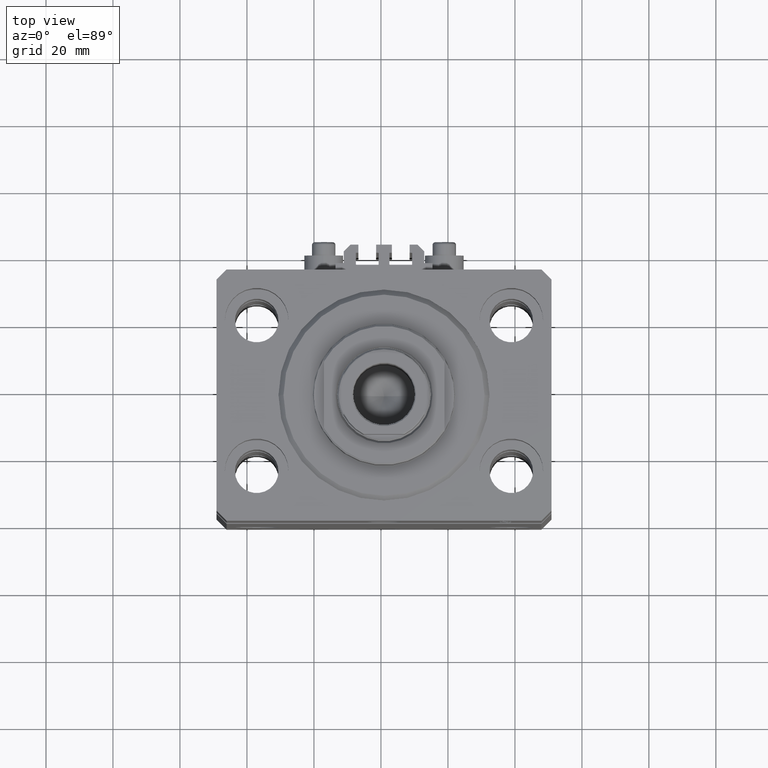
[diagram: clean part render]
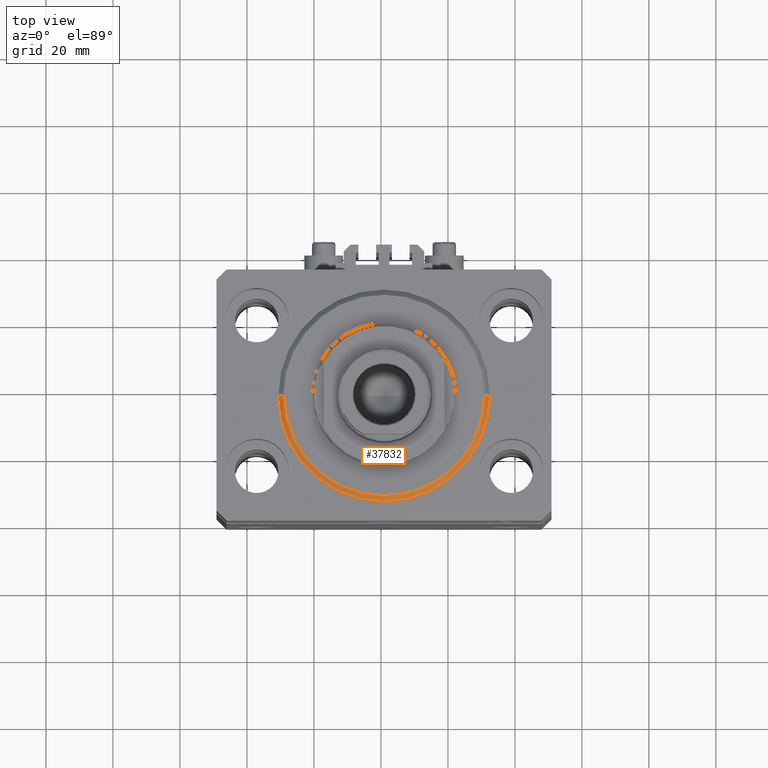
[diagram: same view with one face highlighted and labeled with its STEP entity id]
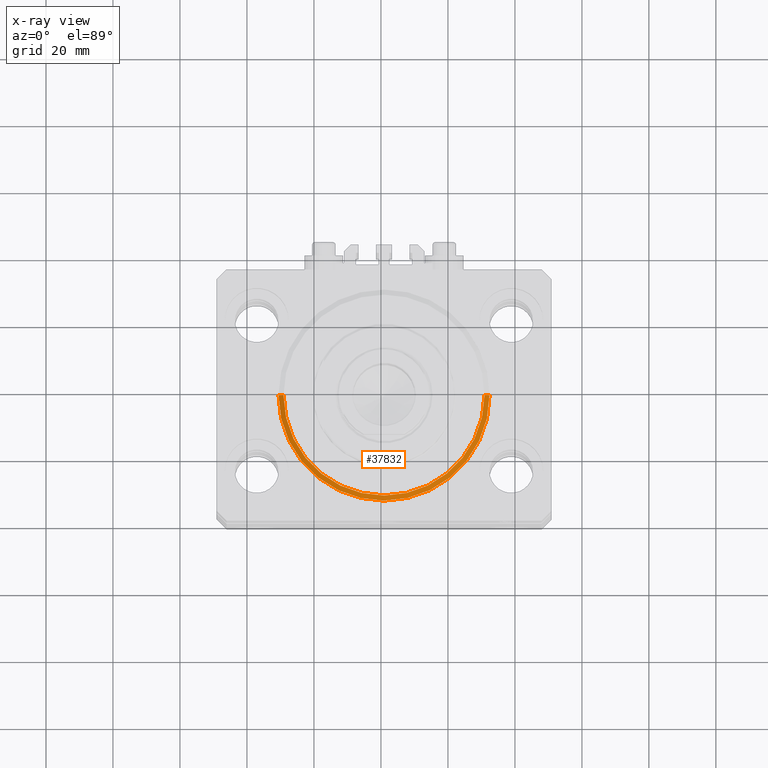
[diagram: x-ray of the same camera — body ghosted, the highlighted face saturated]
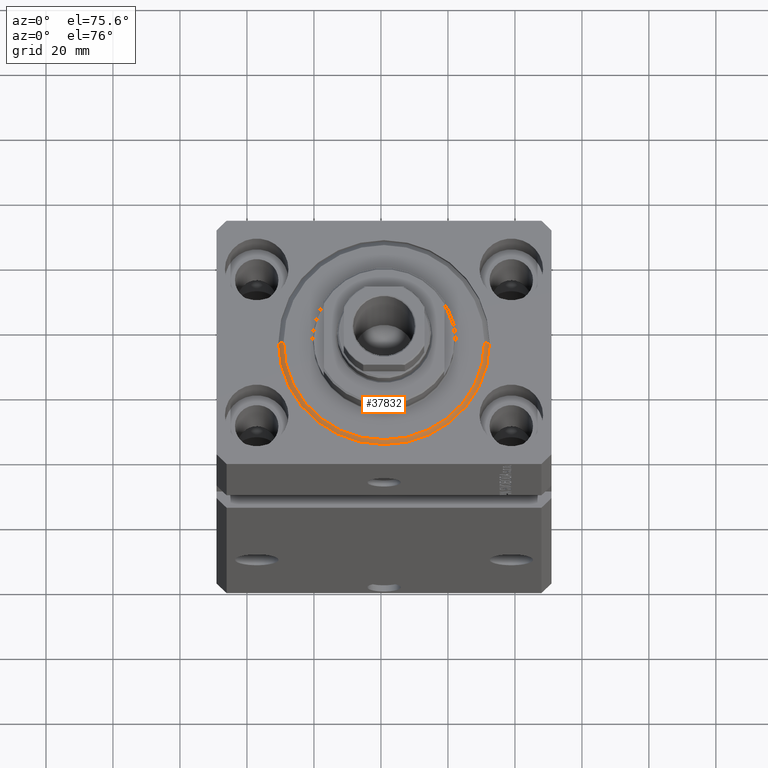
[diagram: same view with one face highlighted and labeled with its STEP entity id]
A machine part, top view. The second image highlights one B-rep face of the part: STEP entity #37832.
The next image is the same camera in x-ray: the body ghosted, the highlighted face saturated — about 0% of this face is hidden behind the body in this view.
A second angle (auxiliary view) of the same face is appended — the face is thin or edge-on in the first view.
In plain terms, the highlighted conical surface has half-angle 45 deg.
Its self-contained STEP definition (entity closure, byte-faithful):
#1787 = DIRECTION ( 'NONE',  ( 0.7071067811865491270, 0.000000000000000000, 0.7071067811865459074 ) ) ;
#2028 = CARTESIAN_POINT ( 'NONE',  ( -29.99999999999999289, 3.765788907378110539E-15, 0.000000000000000000 ) ) ;
#2949 = CARTESIAN_POINT ( 'NONE',  ( 29.99999999999999289, 0.000000000000000000, 0.000000000000000000 ) ) ;
#7659 = DIRECTION ( 'NONE',  ( -0.000000000000000000, -0.000000000000000000, 1.000000000000000000 ) ) ;
#7682 = CARTESIAN_POINT ( 'NONE',  ( -31.50000000000000000, 3.857637417314162689E-15, 1.500000000000001332 ) ) ;
#8219 = VECTOR ( 'NONE', #11342, 1000.000000000000000 ) ;
#9566 = ORIENTED_EDGE ( 'NONE', *, *, #23309, .F. ) ;
#9779 = CIRCLE ( 'NONE', #39359, 31.50000000000000000 ) ;
#10835 = FACE_OUTER_BOUND ( 'NONE', #28869, .T. ) ;
#11253 = AXIS2_PLACEMENT_3D ( 'NONE', #26260, #26017, #45032 ) ;
#11342 = DIRECTION ( 'NONE',  ( -0.7071067811865491270, 8.659560562354952580E-17, 0.7071067811865459074 ) ) ;
#11744 = DIRECTION ( 'NONE',  ( 1.000000000000000000, 0.000000000000000000, 0.000000000000000000 ) ) ;
#16127 = CARTESIAN_POINT ( 'NONE',  ( 31.50000000000000000, 3.857637417314162689E-15, 1.500000000000001332 ) ) ;
#16151 = VERTEX_POINT ( 'NONE', #19411 ) ;
#16464 = VERTEX_POINT ( 'NONE', #2949 ) ;
#16772 = DIRECTION ( 'NONE',  ( -0.000000000000000000, -0.000000000000000000, 1.000000000000000000 ) ) ;
#19411 = CARTESIAN_POINT ( 'NONE',  ( -31.50000000000000000, 0.000000000000000000, 1.500000000000001332 ) ) ;
#19715 = CIRCLE ( 'NONE', #11253, 29.99999999999999289 ) ;
#21581 = VERTEX_POINT ( 'NONE', #16127 ) ;
#23309 = EDGE_CURVE ( 'NONE', #40200, #16151, #41318, .T. ) ;
#23611 = EDGE_CURVE ( 'NONE', #16151, #21581, #9779, .T. ) ;
#26017 = DIRECTION ( 'NONE',  ( -0.000000000000000000, -0.000000000000000000, -1.000000000000000000 ) ) ;
#26186 = CARTESIAN_POINT ( 'NONE',  ( 0.000000000000000000, 0.000000000000000000, 1.500000000000001332 ) ) ;
#26260 = CARTESIAN_POINT ( 'NONE',  ( 0.000000000000000000, 0.000000000000000000, 0.000000000000000000 ) ) ;
#28869 = EDGE_LOOP ( 'NONE', ( #9566, #38291, #39049, #41955 ) ) ;
#29154 = CONICAL_SURFACE ( 'NONE', #39266, 31.50000000000000000, 0.7853981633974506105 ) ;
#32785 = DIRECTION ( 'NONE',  ( 1.000000000000000000, 0.000000000000000000, 0.000000000000000000 ) ) ;
#35241 = EDGE_CURVE ( 'NONE', #16464, #40200, #19715, .T. ) ;
#35626 = LINE ( 'NONE', #39765, #36439 ) ;
#36439 = VECTOR ( 'NONE', #1787, 1000.000000000000000 ) ;
#37832 = ADVANCED_FACE ( 'NONE', ( #10835 ), #29154, .T. ) ;
#38291 = ORIENTED_EDGE ( 'NONE', *, *, #35241, .F. ) ;
#38964 = CARTESIAN_POINT ( 'NONE',  ( 0.000000000000000000, 0.000000000000000000, 1.500000000000001332 ) ) ;
#39049 = ORIENTED_EDGE ( 'NONE', *, *, #46194, .T. ) ;
#39266 = AXIS2_PLACEMENT_3D ( 'NONE', #26186, #7659, #32785 ) ;
#39359 = AXIS2_PLACEMENT_3D ( 'NONE', #38964, #16772, #11744 ) ;
#39765 = CARTESIAN_POINT ( 'NONE',  ( 31.50000000000000000, 0.000000000000000000, 1.500000000000001332 ) ) ;
#40200 = VERTEX_POINT ( 'NONE', #2028 ) ;
#41318 = LINE ( 'NONE', #7682, #8219 ) ;
#41955 = ORIENTED_EDGE ( 'NONE', *, *, #23611, .F. ) ;
#45032 = DIRECTION ( 'NONE',  ( 1.000000000000000000, 0.000000000000000000, 0.000000000000000000 ) ) ;
#46194 = EDGE_CURVE ( 'NONE', #16464, #21581, #35626, .T. ) ;